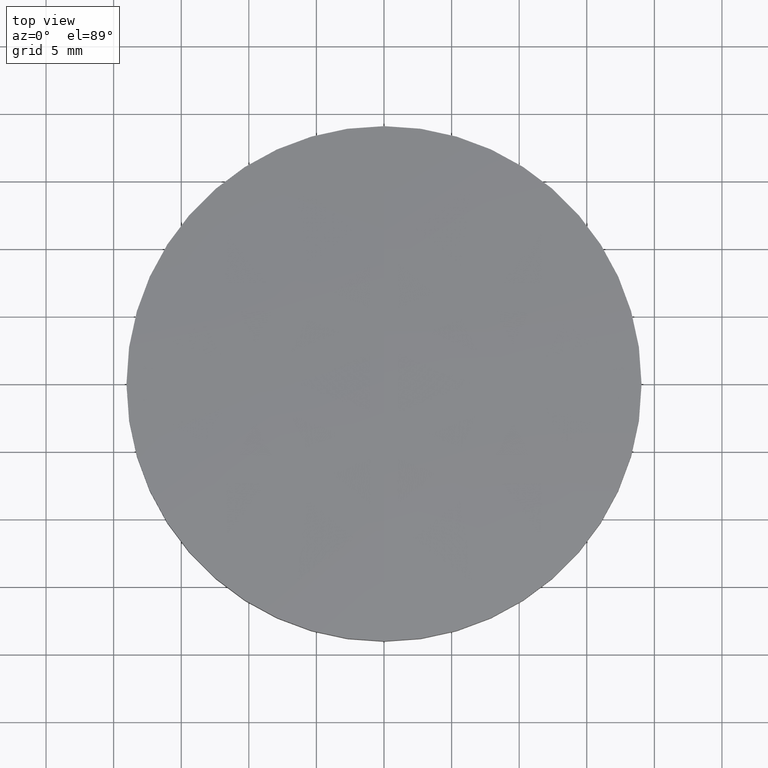
[diagram: clean part render]
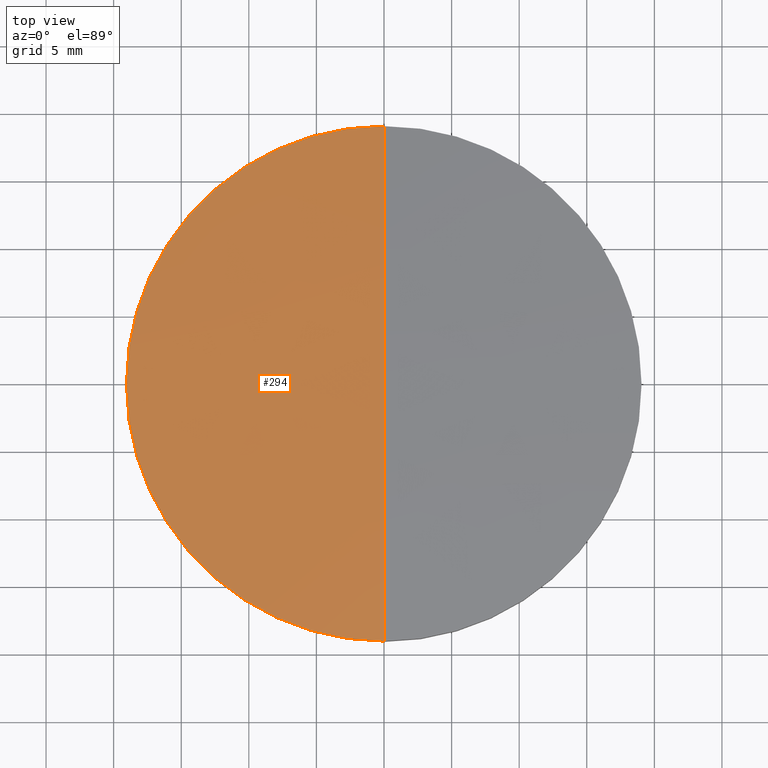
[diagram: same view with one face highlighted and labeled with its STEP entity id]
A machine part, top view. The second image highlights one B-rep face of the part: STEP entity #294.
In plain terms, the highlighted face is a freeform B-spline surface patch.
Its self-contained STEP definition (entity closure, byte-faithful):
#7 = ORIENTED_EDGE ( 'NONE', *, *, #163, .T. ) ;
#16 = VERTEX_POINT ( 'NONE', #148 ) ;
#22 = CARTESIAN_POINT ( 'NONE',  ( -6.408822050789117600, -6.444724679720301300, 5.301337425817966000 ) ) ;
#28 = CARTESIAN_POINT ( 'NONE',  ( -19.19192373488759900, 6.444724679720241800, 4.409304381977994700 ) ) ;
#37 = CARTESIAN_POINT ( 'NONE',  ( -8.526512829121199700E-014, -5.684341886080800200E-014, -201.5999999999999900 ) ) ;
#41 = EDGE_CURVE ( 'NONE', #237, #16, #110, .T. ) ;
#43 = CARTESIAN_POINT ( 'NONE',  ( -4.644055895359926400E-015, -8.881784197001250400E-016, 4.119851983224990000 ) ) ;
#53 = FACE_OUTER_BOUND ( 'NONE', #241, .T. ) ;
#55 = CARTESIAN_POINT ( 'NONE',  ( -12.73626367471877100, 19.27793817985588000, 3.802788586996080700 ) ) ;
#69 = ORIENTED_EDGE ( 'NONE', *, *, #41, .F. ) ;
#81 = EDGE_CURVE ( 'NONE', #16, #219, #235, .T. ) ;
#86 = CARTESIAN_POINT ( 'NONE',  ( -4.644055895359926400E-015, -8.881784197001250400E-016, 4.119851983224990000 ) ) ;
#96 = CARTESIAN_POINT ( 'NONE',  ( -1.991220114042385400E-013, -19.05000000000009300, 4.119851983224985600 ) ) ;
#97 = CARTESIAN_POINT ( 'NONE',  ( -12.73626367471878000, -19.27793817985594100, 3.802788586996052700 ) ) ;
#110 = CIRCLE ( 'NONE', #135, 19.05000000000000100 ) ;
#113 = DIRECTION ( 'NONE',  ( -1.000000000000000000, 2.813027685172509800E-016, -5.274068804094810300E-016 ) ) ;
#119 = CARTESIAN_POINT ( 'NONE',  ( -1.884043759237312400E-013, 19.05000000000004000, 4.119851983224985600 ) ) ;
#120 = CARTESIAN_POINT ( 'NONE',  ( -1.883290568882465600E-013, 19.27793817985587700, 4.098617155132239500 ) ) ;
#121 = CARTESIAN_POINT ( 'NONE',  ( -19.08036082284174700, 19.27793817985588000, 3.211769511431720400 ) ) ;
#125 = CARTESIAN_POINT ( 'NONE',  ( -12.81073263667017800, -6.444724679720299500, 5.003779147387857200 ) ) ;
#135 = AXIS2_PLACEMENT_3D ( 'NONE', #43, #150, #233 ) ;
#147 = CARTESIAN_POINT ( 'NONE',  ( -12.81073263667017800, 6.444724679720237300, 5.003779147387888300 ) ) ;
#148 = CARTESIAN_POINT ( 'NONE',  ( -19.05000000000000400, 1.444773732675583000E-015, 4.119851983224990000 ) ) ;
#150 = DIRECTION ( 'NONE',  ( -5.827942386483759700E-018, -2.717192996813919900E-034, -1.000000000000000000 ) ) ;
#151 = CIRCLE ( 'NONE', #221, 206.5999999999999900 ) ;
#162 = DIRECTION ( 'NONE',  ( -2.813027685172511800E-016, -1.000000000000000000, 2.686890185443263700E-016 ) ) ;
#163 = EDGE_CURVE ( 'NONE', #237, #219, #151, .T. ) ;
#168 = CARTESIAN_POINT ( 'NONE',  ( -19.19192373488759900, -6.444724679720299500, 4.409304381977964500 ) ) ;
#169 = CARTESIAN_POINT ( 'NONE',  ( -19.08036082284175400, -19.27793817985594100, 3.211769511431692900 ) ) ;
#193 = CARTESIAN_POINT ( 'NONE',  ( -6.408822050789115800, 6.444724679720235500, 5.301337425817996200 ) ) ;
#218 = CARTESIAN_POINT ( 'NONE',  ( -1.961992361102488300E-013, -6.444724679720304800, 5.301337425817969500 ) ) ;
#219 = VERTEX_POINT ( 'NONE', #119 ) ;
#221 = AXIS2_PLACEMENT_3D ( 'NONE', #37, #113, #162 ) ;
#227 = ORIENTED_EDGE ( 'NONE', *, *, #81, .F. ) ;
#233 = DIRECTION ( 'NONE',  ( 1.000000000000000000, 0.0000000000000000000, 0.0000000000000000000 ) ) ;
#235 = CIRCLE ( 'NONE', #258, 19.05000000000000100 ) ;
#237 = VERTEX_POINT ( 'NONE', #96 ) ;
#241 = EDGE_LOOP ( 'NONE', ( #69, #7, #227 ) ) ;
#243 = CARTESIAN_POINT ( 'NONE',  ( -6.371567481593946700, 19.27793817985588000, 4.098617155132235000 ) ) ;
#244 = CARTESIAN_POINT ( 'NONE',  ( -1.991749316508423100E-013, -19.27793817985594400, 4.098617155132211900 ) ) ;
#256 = DIRECTION ( 'NONE',  ( 1.000000000000000000, 0.0000000000000000000, 0.0000000000000000000 ) ) ;
#258 = AXIS2_PLACEMENT_3D ( 'NONE', #86, #282, #256 ) ;
#268 =( BOUNDED_SURFACE ( )  B_SPLINE_SURFACE ( 3, 3, ( 
 ( #244, #293, #97, #169 ),
 ( #218, #22, #125, #168 ),
 ( #272, #193, #147, #28 ),
 ( #120, #243, #55, #121 ) ),
 .UNSPECIFIED., .F., .F., .F. ) 
 B_SPLINE_SURFACE_WITH_KNOTS ( ( 4, 4 ),
 ( 4, 4 ),
 ( 0.0000000000000000000, 1.000000000000000000 ),
 ( 0.0000000000000000000, 1.000000000000000000 ),
 .UNSPECIFIED. ) 
 GEOMETRIC_REPRESENTATION_ITEM ( )  RATIONAL_B_SPLINE_SURFACE ( (
 ( 1.000000000000000000, 0.9992810467765543800, 0.9992810467765543800, 1.000000000000000000),
 ( 0.9970913751375676300, 0.9963745130793426600, 0.9963745130793426600, 0.9970913751375676300),
 ( 0.9970913751375676300, 0.9963745130793426600, 0.9963745130793426600, 0.9970913751375676300),
 ( 1.000000000000000000, 0.9992810467765543800, 0.9992810467765543800, 1.000000000000000000) ) ) 
 REPRESENTATION_ITEM ( '' )  SURFACE ( )  );
#272 = CARTESIAN_POINT ( 'NONE',  ( -1.925733983207752900E-013, 6.444724679720236400, 5.301337425818000600 ) ) ;
#282 = DIRECTION ( 'NONE',  ( -5.827942386483759700E-018, -2.717192996813919900E-034, -1.000000000000000000 ) ) ;
#293 = CARTESIAN_POINT ( 'NONE',  ( -6.371567481593957400, -19.27793817985594100, 4.098617155132209300 ) ) ;
#294 = ADVANCED_FACE ( 'NONE', ( #53 ), #268, .T. ) ;